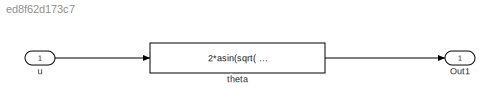
MODEL slx_ed8f62d173c7
KIND model
CONFIG AbsTol = auto
CONFIG EnableMultiTasking = off
CONFIG FixedStep = 0.1
CONFIG MaxStep = auto
CONFIG MinStep = auto
CONFIG RelTol = 1e-3
CONFIG SampleTimeConstraint = Unconstrained
CONFIG Solver = FixedStepAuto
CONFIG SolverName = FixedStepAuto
CONFIG StartTime = 0.0
CONFIG StopTime = 10.0
BLOCK [Outport] Out1
  IconDisplay = Port number
BLOCK [Fcn] theta
  Expr = 2*asin(sqrt( u(2)^2 + u(3)^2 + u(4)^2 ) )
BLOCK [Inport] u
  IconDisplay = Port number
  PortDimensions = 4
LINE theta:1 -> Out1:1
LINE u:1 -> theta:1
